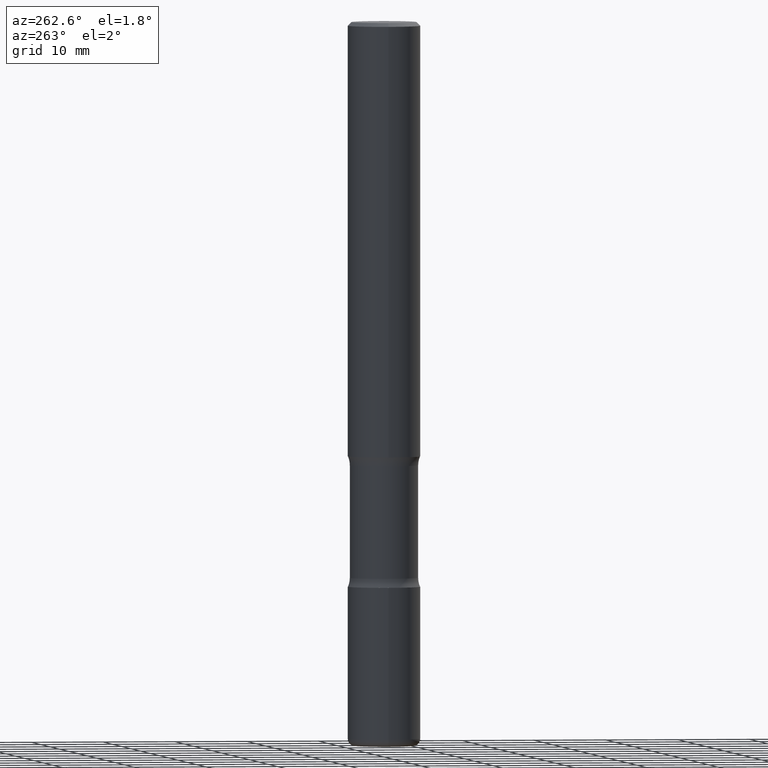
[diagram: clean part render]
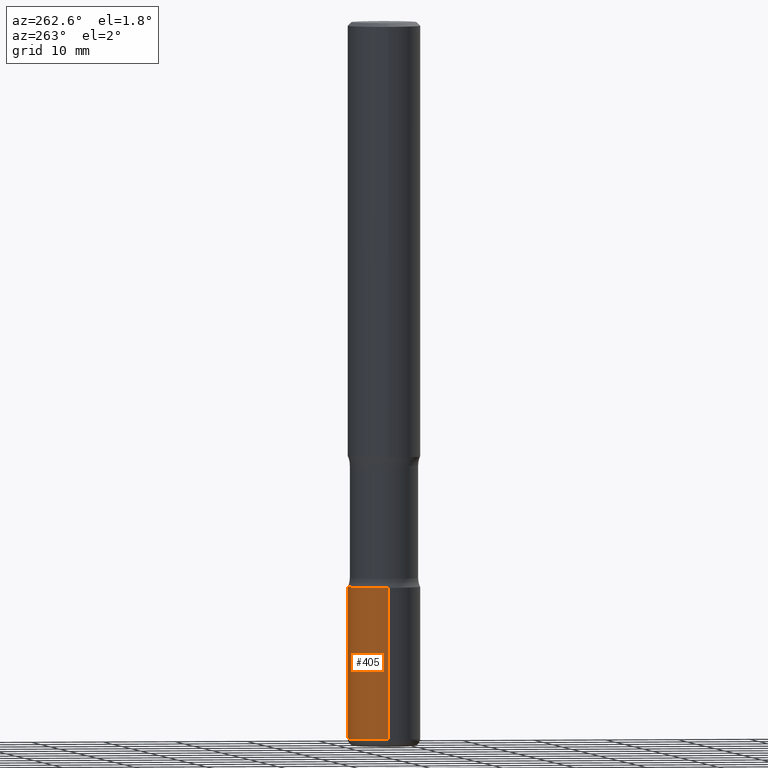
[diagram: same view with one face highlighted and labeled with its STEP entity id]
A machine part, auxiliary view. The second image highlights one B-rep face of the part: STEP entity #405.
In plain terms, the highlighted cylindrical surface (edge-blend (fillet) strip) has radius 5 mm, axis along (-0, 0, 1).
Its self-contained STEP definition (entity closure, byte-faithful):
#1 = DIRECTION ( 'NONE',  ( -2.445468806185136597E-29, 3.491481338843145583E-15, 1.000000000000000000 ) ) ;
#6 = CARTESIAN_POINT ( 'NONE',  ( -0.1968500000000002192, -1.220969429093128562E-14, -3.897600000000000176 ) ) ;
#8 = CARTESIAN_POINT ( 'NONE',  ( -0.1968500000000002470, 1.398703375343758971E-15, -9.682923725166793487E-30 ) ) ;
#19 = EDGE_CURVE ( 'NONE', #243, #476, #198, .T. ) ;
#21 = CARTESIAN_POINT ( 'NONE',  ( -0.1968500000000001915, -1.076649047952047064E-14, -3.070900000000000407 ) ) ;
#77 = VERTEX_POINT ( 'NONE', #21 ) ;
#79 = VECTOR ( 'NONE', #482, 39.37007874015748143 ) ;
#83 = ORIENTED_EDGE ( 'NONE', *, *, #436, .T. ) ;
#87 = EDGE_LOOP ( 'NONE', ( #499, #83, #356, #293 ) ) ;
#140 = DIRECTION ( 'NONE',  ( -2.445468806185136597E-29, 3.491481338843145583E-15, 1.000000000000000000 ) ) ;
#181 = VERTEX_POINT ( 'NONE', #200 ) ;
#198 = CIRCLE ( 'NONE', #239, 0.1968500000000003303 ) ;
#200 = CARTESIAN_POINT ( 'NONE',  ( 0.1968500000000001915, -1.209658624655596058E-14, -3.070900000000000407 ) ) ;
#219 = EDGE_CURVE ( 'NONE', #181, #77, #402, .T. ) ;
#239 = AXIS2_PLACEMENT_3D ( 'NONE', #524, #140, #440 ) ;
#243 = VERTEX_POINT ( 'NONE', #463 ) ;
#248 = VECTOR ( 'NONE', #377, 39.37007874015748143 ) ;
#281 = AXIS2_PLACEMENT_3D ( 'NONE', #465, #411, #381 ) ;
#291 = LINE ( 'NONE', #459, #248 ) ;
#292 = EDGE_CURVE ( 'NONE', #243, #181, #291, .T. ) ;
#293 = ORIENTED_EDGE ( 'NONE', *, *, #292, .F. ) ;
#309 = FACE_OUTER_BOUND ( 'NONE', #87, .T. ) ;
#340 = AXIS2_PLACEMENT_3D ( 'NONE', #389, #1, #526 ) ;
#356 = ORIENTED_EDGE ( 'NONE', *, *, #219, .F. ) ;
#377 = DIRECTION ( 'NONE',  ( -2.445468806185136877E-29, 3.491481338843145188E-15, 1.000000000000000000 ) ) ;
#381 = DIRECTION ( 'NONE',  ( 1.000000000000000000, -6.982962677686272233E-15, 0.000000000000000000 ) ) ;
#384 = CYLINDRICAL_SURFACE ( 'NONE', #340, 0.1968500000000002470 ) ;
#389 = CARTESIAN_POINT ( 'NONE',  ( 0.000000000000000000, 0.000000000000000000, 0.000000000000000000 ) ) ;
#402 = CIRCLE ( 'NONE', #281, 0.1968500000000001915 ) ;
#405 = ADVANCED_FACE ( 'NONE', ( #309 ), #384, .T. ) ;
#411 = DIRECTION ( 'NONE',  ( -2.445468806185136597E-29, 3.491481338843145583E-15, 1.000000000000000000 ) ) ;
#434 = LINE ( 'NONE', #8, #79 ) ;
#436 = EDGE_CURVE ( 'NONE', #476, #77, #434, .T. ) ;
#440 = DIRECTION ( 'NONE',  ( 1.000000000000000000, -6.982962677686266711E-15, 0.000000000000000000 ) ) ;
#459 = CARTESIAN_POINT ( 'NONE',  ( 0.1968500000000002470, -1.374596203102543383E-15, 9.598753983154312069E-30 ) ) ;
#463 = CARTESIAN_POINT ( 'NONE',  ( 0.1968500000000002192, -1.498299386937758423E-14, -3.897600000000000176 ) ) ;
#465 = CARTESIAN_POINT ( 'NONE',  ( 7.509790156913936305E-29, -1.072199004345341739E-14, -3.070900000000000407 ) ) ;
#476 = VERTEX_POINT ( 'NONE', #6 ) ;
#482 = DIRECTION ( 'NONE',  ( -2.445468806185136877E-29, 3.491481338843145188E-15, 1.000000000000000000 ) ) ;
#499 = ORIENTED_EDGE ( 'NONE', *, *, #19, .T. ) ;
#524 = CARTESIAN_POINT ( 'NONE',  ( 9.531459218987189074E-29, -1.360839766627504420E-14, -3.897600000000000176 ) ) ;
#526 = DIRECTION ( 'NONE',  ( 1.000000000000000000, -6.982962677686266711E-15, 4.876176775795935793E-29 ) ) ;